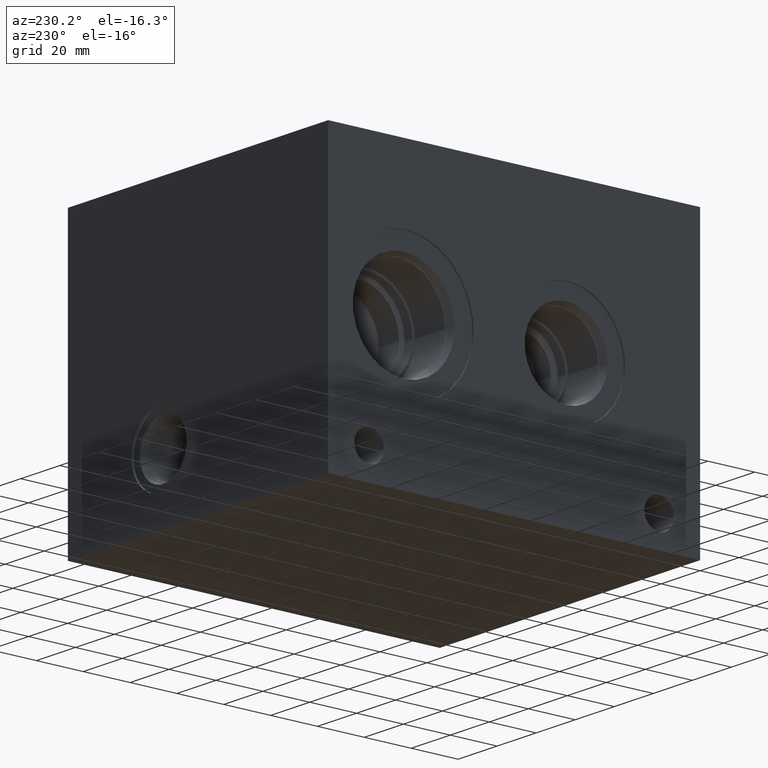
[diagram: clean part render]
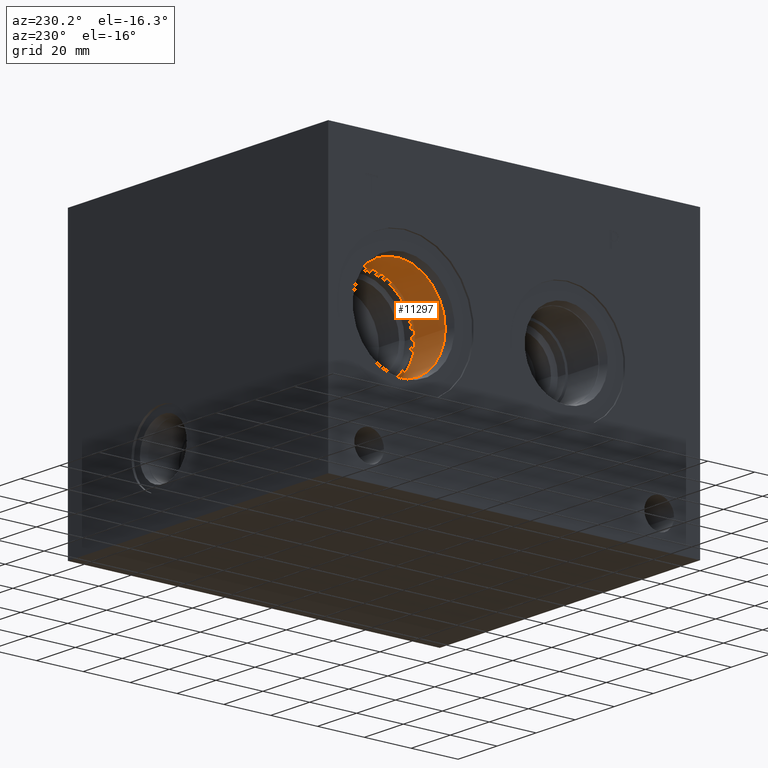
[diagram: same view with one face highlighted and labeled with its STEP entity id]
A machine part, auxiliary view. The second image highlights one B-rep face of the part: STEP entity #11297.
In plain terms, the highlighted cylindrical surface (bore or boss wall) has radius 20.64 mm, axis along (-1, 0, 0).
Its self-contained STEP definition (entity closure, byte-faithful):
#115=CYLINDRICAL_SURFACE('',#11937,20.64);
#316=CIRCLE('',#11934,20.64);
#317=CIRCLE('',#11935,20.64);
#319=CIRCLE('',#11938,20.64);
#320=CIRCLE('',#11939,20.64);
#1457=FACE_OUTER_BOUND('',#2116,.T.);
#2116=EDGE_LOOP('',(#9742,#9743,#9744,#9745,#9746,#9747));
#3171=LINE('',#19339,#4194);
#4194=VECTOR('',#14207,20.64);
#5214=VERTEX_POINT('',#19329);
#5215=VERTEX_POINT('',#19330);
#5217=VERTEX_POINT('',#19336);
#5218=VERTEX_POINT('',#19337);
#6757=EDGE_CURVE('',#5214,#5215,#316,.T.);
#6758=EDGE_CURVE('',#5215,#5214,#317,.T.);
#6760=EDGE_CURVE('',#5217,#5218,#319,.T.);
#6761=EDGE_CURVE('',#5217,#5215,#3171,.T.);
#6762=EDGE_CURVE('',#5218,#5217,#320,.T.);
#9742=ORIENTED_EDGE('',*,*,#6760,.F.);
#9743=ORIENTED_EDGE('',*,*,#6761,.T.);
#9744=ORIENTED_EDGE('',*,*,#6757,.F.);
#9745=ORIENTED_EDGE('',*,*,#6758,.F.);
#9746=ORIENTED_EDGE('',*,*,#6761,.F.);
#9747=ORIENTED_EDGE('',*,*,#6762,.F.);
#11297=ADVANCED_FACE('',(#1457),#115,.F.);
#11934=AXIS2_PLACEMENT_3D('',#19331,#14197,#14198);
#11935=AXIS2_PLACEMENT_3D('',#19332,#14199,#14200);
#11937=AXIS2_PLACEMENT_3D('',#19335,#14203,#14204);
#11938=AXIS2_PLACEMENT_3D('',#19338,#14205,#14206);
#11939=AXIS2_PLACEMENT_3D('',#19340,#14208,#14209);
#14197=DIRECTION('center_axis',(-1.,0.,0.));
#14198=DIRECTION('ref_axis',(0.,1.,0.));
#14199=DIRECTION('center_axis',(-1.,0.,0.));
#14200=DIRECTION('ref_axis',(0.,1.,0.));
#14203=DIRECTION('center_axis',(-1.,0.,0.));
#14204=DIRECTION('ref_axis',(0.,1.,0.));
#14205=DIRECTION('center_axis',(1.,0.,0.));
#14206=DIRECTION('ref_axis',(0.,1.,0.));
#14207=DIRECTION('',(1.,0.,0.));
#14208=DIRECTION('center_axis',(1.,0.,0.));
#14209=DIRECTION('ref_axis',(0.,1.,0.));
#19329=CARTESIAN_POINT('',(19.8374,146.4716,60.325));
#19330=CARTESIAN_POINT('',(19.8374,105.1916,60.325));
#19331=CARTESIAN_POINT('Origin',(19.8374,125.8316,60.325));
#19332=CARTESIAN_POINT('Origin',(19.8374,125.8316,60.325));
#19335=CARTESIAN_POINT('Origin',(9.9187,125.8316,60.325));
#19336=CARTESIAN_POINT('',(4.3028,105.1916,60.325));
#19337=CARTESIAN_POINT('',(4.3028,125.8316,39.685));
#19338=CARTESIAN_POINT('Origin',(4.3028,125.8316,60.325));
#19339=CARTESIAN_POINT('',(9.9187,105.1916,60.325));
#19340=CARTESIAN_POINT('Origin',(4.3028,125.8316,60.325));